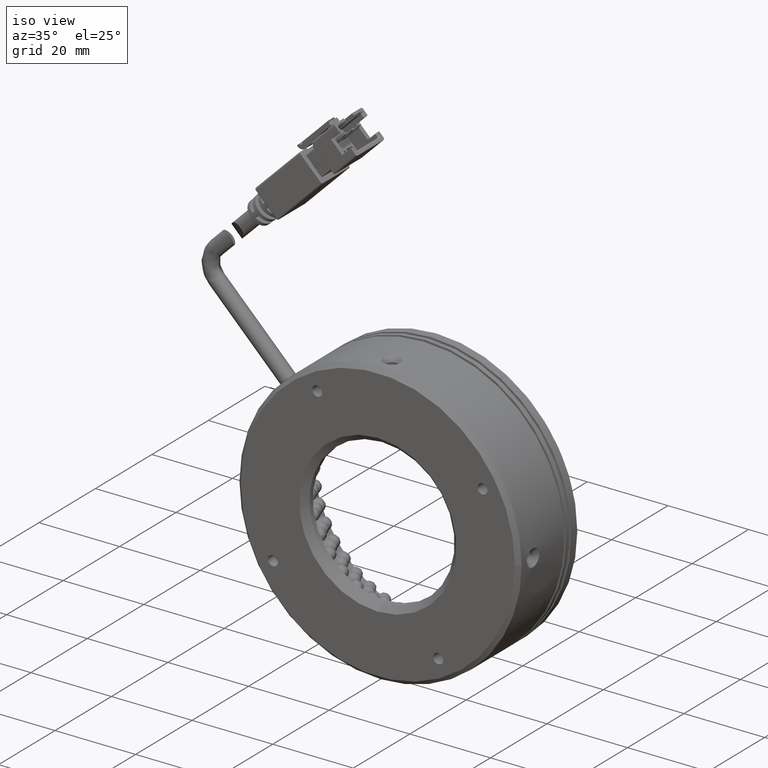
[diagram: clean part render]
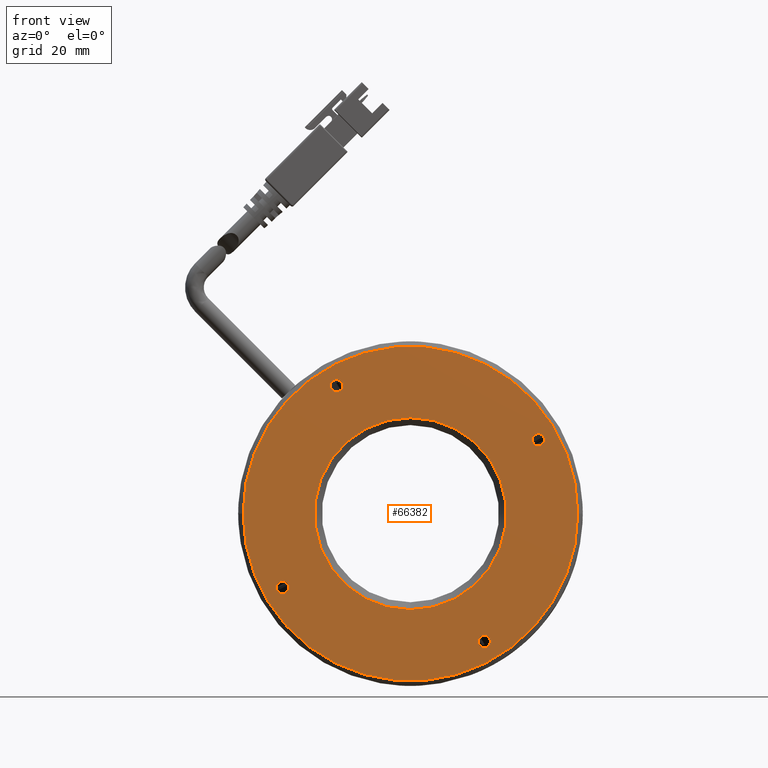
[diagram: tour spotlight — one face highlighted and labeled with its STEP entity id]
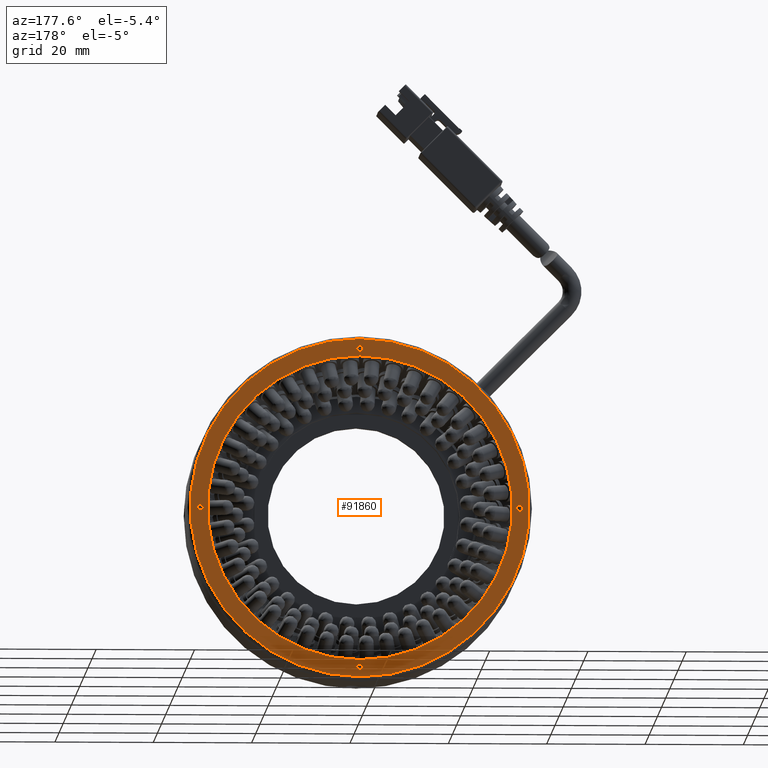
[diagram: tour spotlight — one face highlighted and labeled with its STEP entity id]
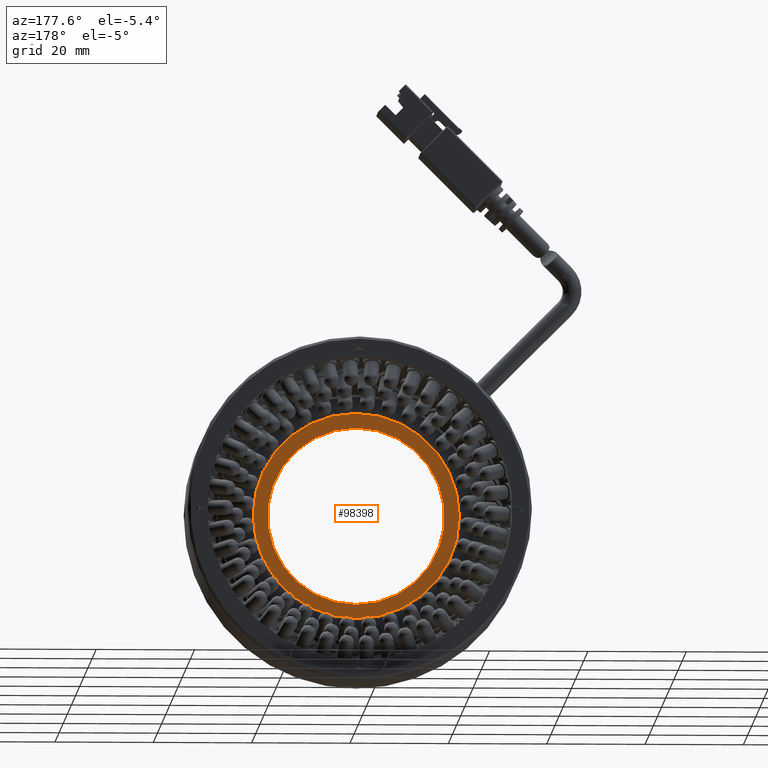
[diagram: tour spotlight — one face highlighted and labeled with its STEP entity id]
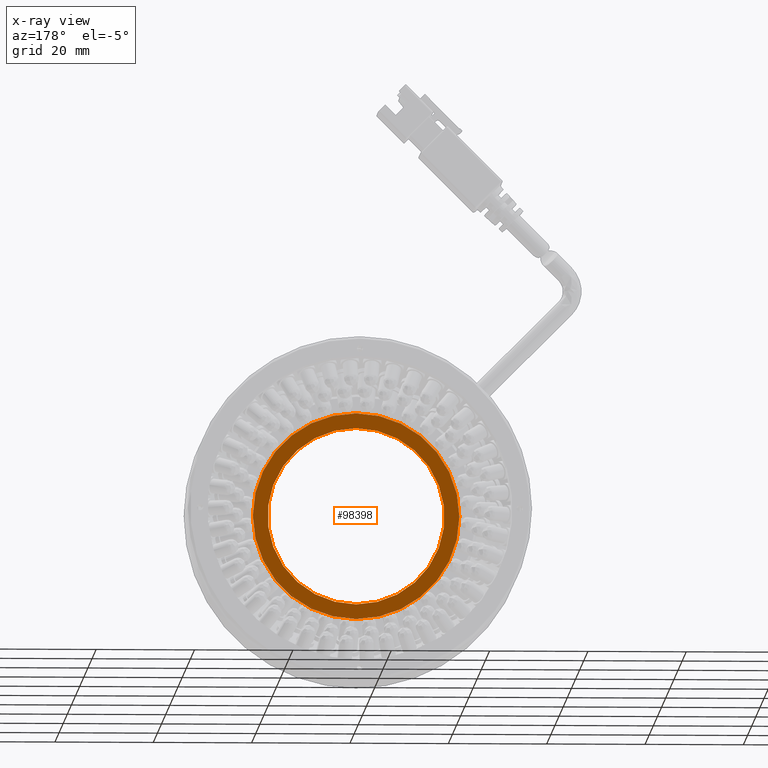
[diagram: x-ray of the same camera — body ghosted, this tour face saturated]
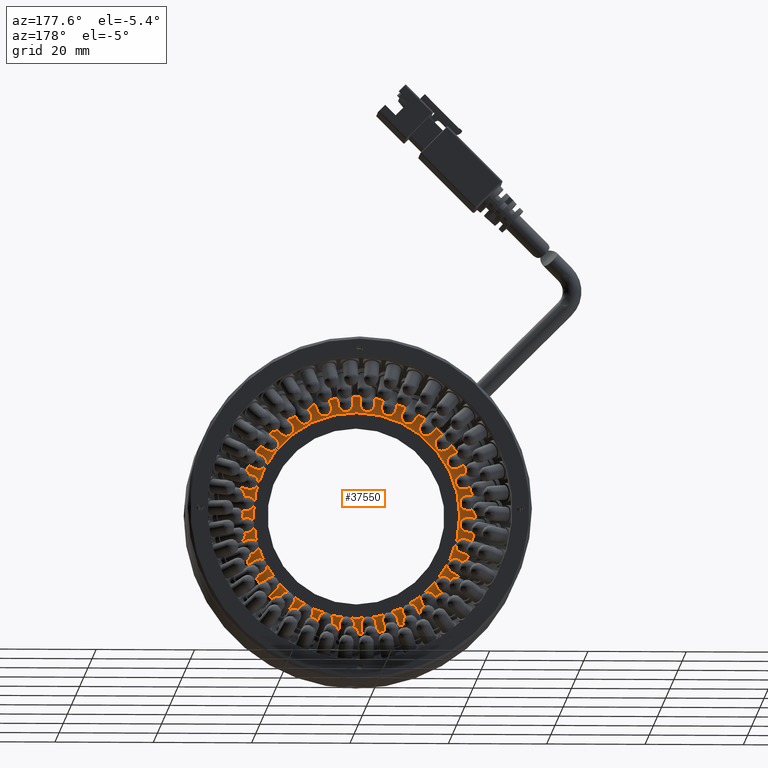
[diagram: tour spotlight — one face highlighted and labeled with its STEP entity id]
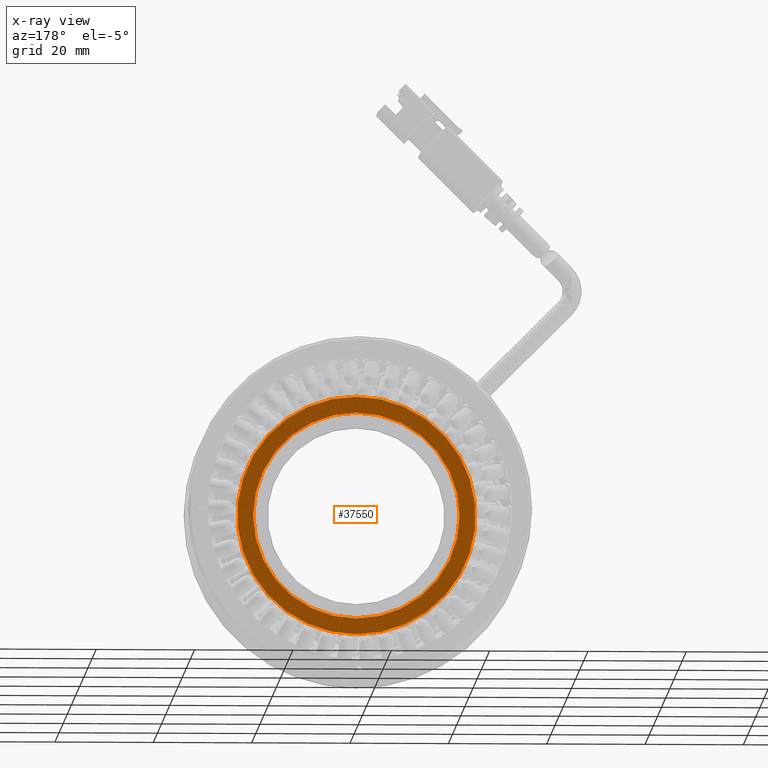
[diagram: x-ray of the same camera — body ghosted, this tour face saturated]
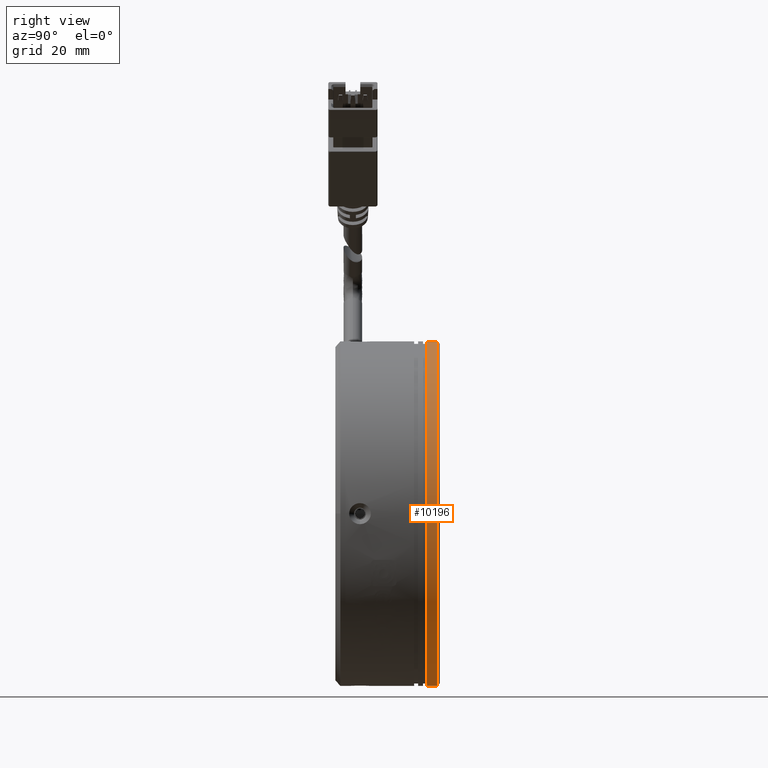
[diagram: tour spotlight — one face highlighted and labeled with its STEP entity id]
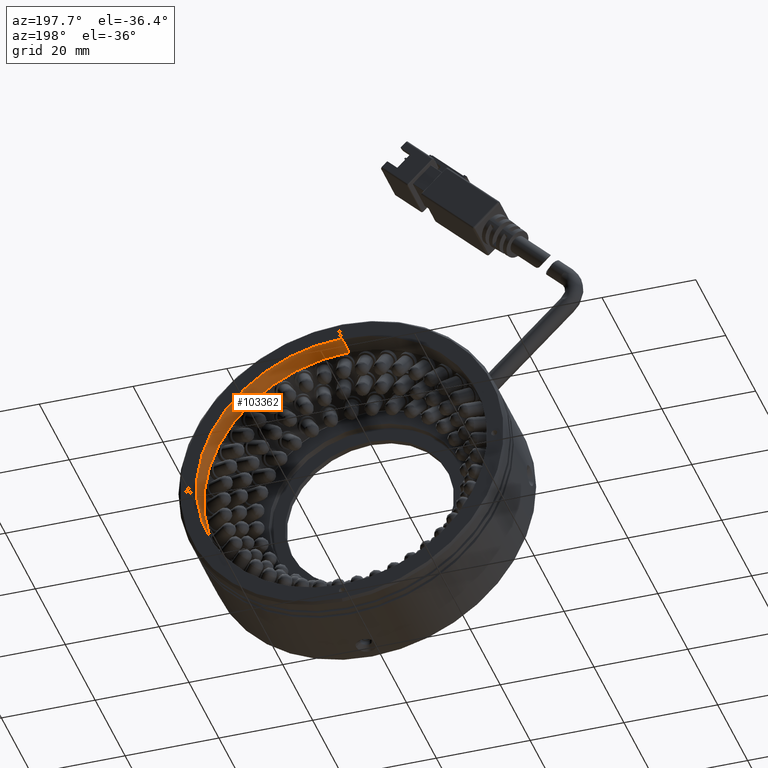
[diagram: tour spotlight — one face highlighted and labeled with its STEP entity id]
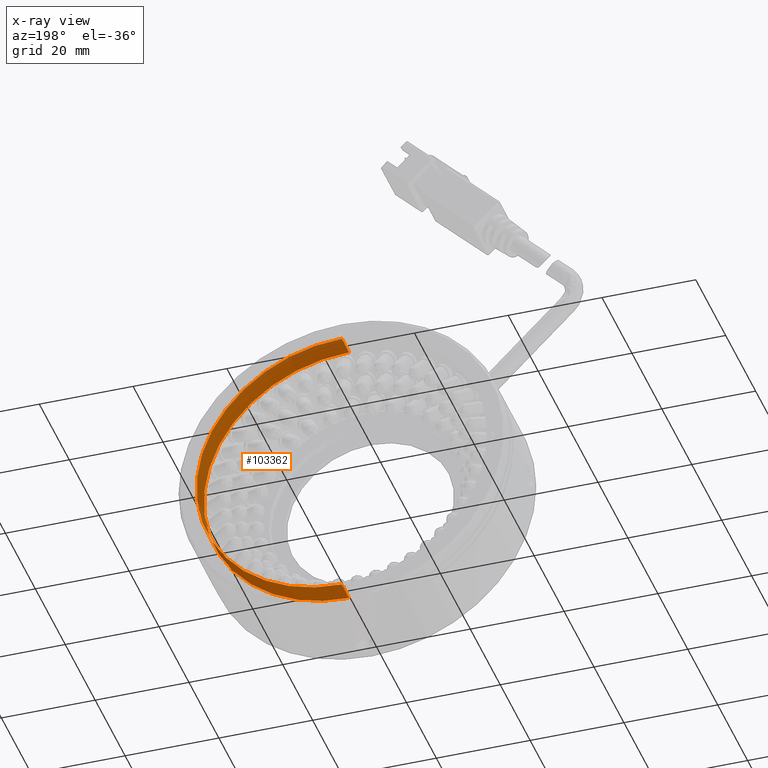
[diagram: x-ray of the same camera — body ghosted, this tour face saturated]
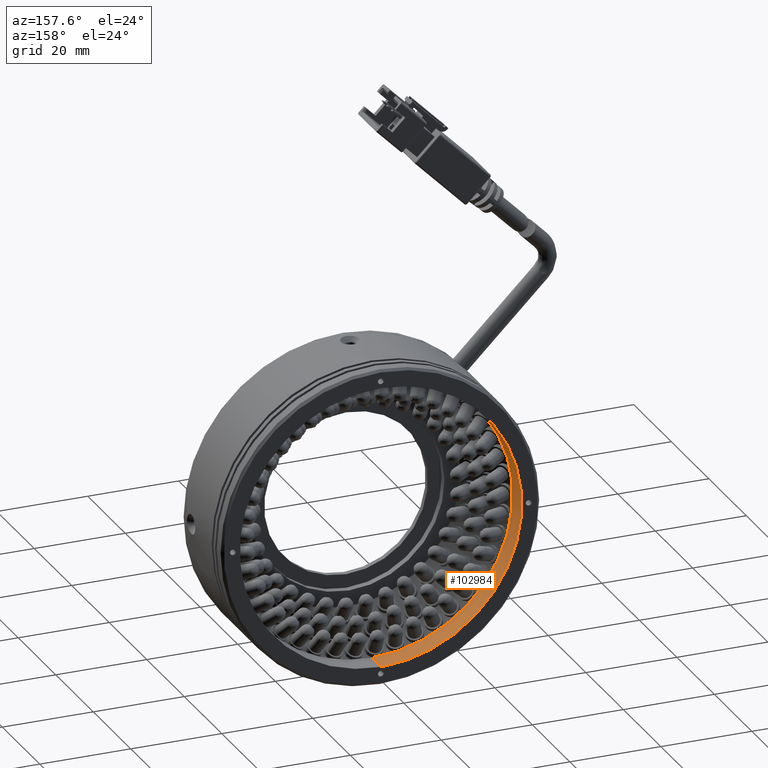
[diagram: tour spotlight — one face highlighted and labeled with its STEP entity id]
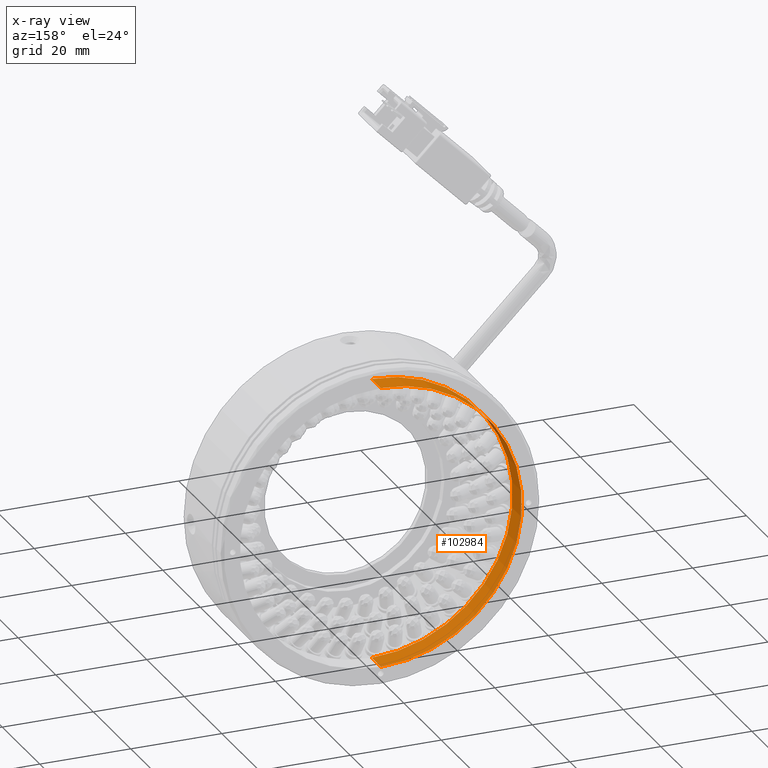
[diagram: x-ray of the same camera — body ghosted, this tour face saturated]
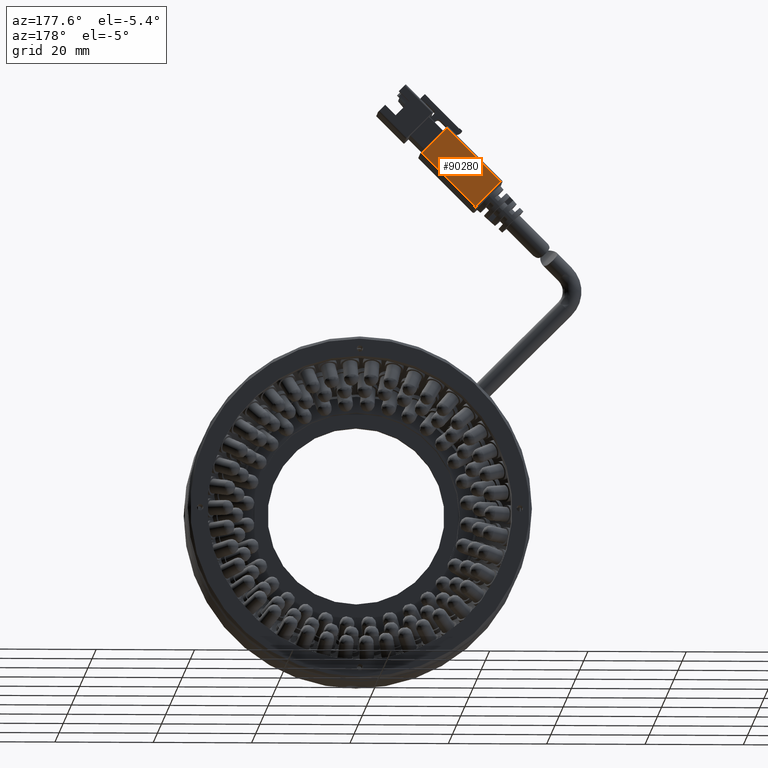
[diagram: tour spotlight — one face highlighted and labeled with its STEP entity id]
A machine part: a face-by-face anatomy tour. The part has 2275 B-rep faces; the first image is the clean iso view, then the 8 largest visible faces are spotlighted one at a time (largest first), each with its STEP entity span.

Face 1 — front view, entity #66382. In plain terms, the highlighted planar face has unit normal (0, 1, 0).
Definition (entity closure, byte-faithful):
#283 = CARTESIAN_POINT ( 'NONE',  ( -22.22376356038446600, -26.73693679055957900, -39.08318759848835800 ) ) ;
#1486 = DIRECTION ( 'NONE',  ( -0.0000000000000000000, -1.000000000000000000, -0.0000000000000000000 ) ) ;
#3578 = AXIS2_PLACEMENT_3D ( 'NONE', #31961, #88263, #40081 ) ;
#4066 = DIRECTION ( 'NONE',  ( 0.0000000000000000000, 1.000000000000000000, 0.0000000000000000000 ) ) ;
#4451 = AXIS2_PLACEMENT_3D ( 'NONE', #90619, #42412, #98644 ) ;
#6367 = ORIENTED_EDGE ( 'NONE', *, *, #12301, .F. ) ;
#8370 = DIRECTION ( 'NONE',  ( 0.0000000000000000000, 0.0000000000000000000, -1.000000000000000000 ) ) ;
#10443 = EDGE_CURVE ( 'NONE', #72847, #84745, #87884, .T. ) ;
#10648 = EDGE_CURVE ( 'NONE', #37887, #54056, #19805, .T. ) ;
#11037 = CIRCLE ( 'NONE', #43676, 1.249999999999994200 ) ;
#11477 = CARTESIAN_POINT ( 'NONE',  ( -11.24300144685170000, -26.73693679055957900, 1.897574515044971000 ) ) ;
#12301 = EDGE_CURVE ( 'NONE', #54056, #37887, #97014, .T. ) ;
#14035 = CARTESIAN_POINT ( 'NONE',  ( -37.22376356038467500, -26.73693679055958200, 6.397574515044687400 ) ) ;
#14776 = CARTESIAN_POINT ( 'NONE',  ( -52.22376356038507300, -26.73693679055957900, 12.87833662857758900 ) ) ;
#17142 = ORIENTED_EDGE ( 'NONE', *, *, #47731, .F. ) ;
#19601 = DIRECTION ( 'NONE',  ( 0.0000000000000000000, 0.0000000000000000000, -1.000000000000000000 ) ) ;
#19805 = CIRCLE ( 'NONE', #47359, 34.00000000000004300 ) ;
#20929 = AXIS2_PLACEMENT_3D ( 'NONE', #11477, #67796, #19601 ) ;
#21637 = DIRECTION ( 'NONE',  ( -0.0000000000000000000, -1.000000000000000000, -0.0000000000000000000 ) ) ;
#21804 = VERTEX_POINT ( 'NONE', #58706 ) ;
#22853 = ORIENTED_EDGE ( 'NONE', *, *, #10443, .F. ) ;
#22900 = ORIENTED_EDGE ( 'NONE', *, *, #55451, .F. ) ;
#22918 = DIRECTION ( 'NONE',  ( 0.0000000000000000000, 0.0000000000000000000, -1.000000000000000000 ) ) ;
#23020 = EDGE_LOOP ( 'NONE', ( #42322, #22853 ) ) ;
#25179 = EDGE_LOOP ( 'NONE', ( #55427, #64336 ) ) ;
#26032 = CARTESIAN_POINT ( 'NONE',  ( -11.24300144685170000, -26.73693679055957900, 1.897574515044971000 ) ) ;
#26082 = VERTEX_POINT ( 'NONE', #29254 ) ;
#27374 = EDGE_LOOP ( 'NONE', ( #22900, #98588 ) ) ;
#27650 = CIRCLE ( 'NONE', #3578, 1.249999999999994200 ) ;
#28078 = AXIS2_PLACEMENT_3D ( 'NONE', #14776, #71090, #22918 ) ;
#29198 = EDGE_LOOP ( 'NONE', ( #66798, #6367 ) ) ;
#29254 = CARTESIAN_POINT ( 'NONE',  ( -52.22376356038507300, -26.73693679055957900, 14.12833662857758400 ) ) ;
#29986 = FACE_BOUND ( 'NONE', #23020, .T. ) ;
#31936 = EDGE_CURVE ( 'NONE', #59867, #21804, #62318, .T. ) ;
#31961 = CARTESIAN_POINT ( 'NONE',  ( -22.22376356038446600, -26.73693679055957900, -39.08318759848835800 ) ) ;
#32512 = FACE_BOUND ( 'NONE', #48502, .T. ) ;
#32928 = VERTEX_POINT ( 'NONE', #56525 ) ;
#34142 = DIRECTION ( 'NONE',  ( 0.0000000000000000000, 0.0000000000000000000, -1.000000000000000000 ) ) ;
#37219 = CIRCLE ( 'NONE', #99041, 1.249999999999994200 ) ;
#37716 = CIRCLE ( 'NONE', #20929, 1.249999999999994200 ) ;
#37887 = VERTEX_POINT ( 'NONE', #70057 ) ;
#38551 = AXIS2_PLACEMENT_3D ( 'NONE', #96009, #95905, #95896 ) ;
#38780 = CIRCLE ( 'NONE', #4451, 1.249999999999994200 ) ;
#40081 = DIRECTION ( 'NONE',  ( 0.0000000000000000000, 0.0000000000000000000, -1.000000000000000000 ) ) ;
#41457 = DIRECTION ( 'NONE',  ( 0.0000000000000000000, -1.000000000000000000, 0.0000000000000000000 ) ) ;
#41645 = EDGE_CURVE ( 'NONE', #26082, #41743, #42728, .T. ) ;
#41743 = VERTEX_POINT ( 'NONE', #88712 ) ;
#42322 = ORIENTED_EDGE ( 'NONE', *, *, #55121, .F. ) ;
#42412 = DIRECTION ( 'NONE',  ( -0.0000000000000000000, -1.000000000000000000, -0.0000000000000000000 ) ) ;
#42728 = CIRCLE ( 'NONE', #28078, 1.249999999999994200 ) ;
#43572 = ORIENTED_EDGE ( 'NONE', *, *, #71365, .F. ) ;
#43676 = AXIS2_PLACEMENT_3D ( 'NONE', #283, #56618, #8370 ) ;
#43738 = AXIS2_PLACEMENT_3D ( 'NONE', #89664, #41457, #97677 ) ;
#45541 = VERTEX_POINT ( 'NONE', #92924 ) ;
#47359 = AXIS2_PLACEMENT_3D ( 'NONE', #87630, #87513, #87502 ) ;
#47731 = EDGE_CURVE ( 'NONE', #32928, #57937, #63064, .T. ) ;
#48502 = EDGE_LOOP ( 'NONE', ( #17142, #74978 ) ) ;
#49284 = EDGE_CURVE ( 'NONE', #57937, #32928, #38780, .T. ) ;
#49713 = CARTESIAN_POINT ( 'NONE',  ( -63.20452567391775000, -26.73693679055957900, -28.10242548495545400 ) ) ;
#51474 = FACE_OUTER_BOUND ( 'NONE', #29198, .T. ) ;
#52297 = CARTESIAN_POINT ( 'NONE',  ( -55.22376356038467500, -26.73693679055958200, -13.10242548495533300 ) ) ;
#53743 = AXIS2_PLACEMENT_3D ( 'NONE', #52297, #4066, #60341 ) ;
#54056 = VERTEX_POINT ( 'NONE', #94689 ) ;
#54552 = AXIS2_PLACEMENT_3D ( 'NONE', #26032, #82328, #34142 ) ;
#55121 = EDGE_CURVE ( 'NONE', #84745, #72847, #86517, .T. ) ;
#55427 = ORIENTED_EDGE ( 'NONE', *, *, #31936, .F. ) ;
#55451 = EDGE_CURVE ( 'NONE', #41743, #26082, #37219, .T. ) ;
#56525 = CARTESIAN_POINT ( 'NONE',  ( -63.20452567391775000, -26.73693679055957900, -29.35242548495545000 ) ) ;
#56618 = DIRECTION ( 'NONE',  ( -0.0000000000000000000, -1.000000000000000000, -0.0000000000000000000 ) ) ;
#57067 = AXIS2_PLACEMENT_3D ( 'NONE', #62048, #61961, #61703 ) ;
#57783 = DIRECTION ( 'NONE',  ( 0.0000000000000000000, 0.0000000000000000000, -1.000000000000000000 ) ) ;
#57937 = VERTEX_POINT ( 'NONE', #71453 ) ;
#58706 = CARTESIAN_POINT ( 'NONE',  ( -11.24300144685170000, -26.73693679055957900, 3.147574515044965400 ) ) ;
#58723 = EDGE_LOOP ( 'NONE', ( #90579, #43572 ) ) ;
#59867 = VERTEX_POINT ( 'NONE', #93798 ) ;
#60341 = DIRECTION ( 'NONE',  ( 0.0000000000000000000, -0.0000000000000000000, 1.000000000000000000 ) ) ;
#61184 = EDGE_CURVE ( 'NONE', #91519, #45541, #27650, .T. ) ;
#61390 = AXIS2_PLACEMENT_3D ( 'NONE', #49713, #1486, #57783 ) ;
#61703 = DIRECTION ( 'NONE',  ( -1.000000000000000000, 0.0000000000000000000, 0.0000000000000000000 ) ) ;
#61961 = DIRECTION ( 'NONE',  ( 2.478176394252581700E-017, 1.000000000000000000, 0.0000000000000000000 ) ) ;
#62048 = CARTESIAN_POINT ( 'NONE',  ( -37.22376356038467500, -26.73693679055958200, -13.10242548495533300 ) ) ;
#62318 = CIRCLE ( 'NONE', #54552, 1.249999999999994200 ) ;
#63064 = CIRCLE ( 'NONE', #61390, 1.249999999999994200 ) ;
#64336 = ORIENTED_EDGE ( 'NONE', *, *, #100312, .F. ) ;
#66382 = ADVANCED_FACE ( 'NONE', ( #32512, #94183, #75312, #72764, #51474, #29986 ), #91653, .F. ) ;
#66798 = ORIENTED_EDGE ( 'NONE', *, *, #10648, .F. ) ;
#67796 = DIRECTION ( 'NONE',  ( -0.0000000000000000000, -1.000000000000000000, -0.0000000000000000000 ) ) ;
#69190 = CARTESIAN_POINT ( 'NONE',  ( -22.22376356038446600, -26.73693679055957900, -40.33318759848835800 ) ) ;
#69805 = CARTESIAN_POINT ( 'NONE',  ( -52.22376356038507300, -26.73693679055957900, 12.87833662857758900 ) ) ;
#70057 = CARTESIAN_POINT ( 'NONE',  ( -71.22376356038472500, -26.73693679055958200, -13.10242548495533300 ) ) ;
#71090 = DIRECTION ( 'NONE',  ( -0.0000000000000000000, -1.000000000000000000, -0.0000000000000000000 ) ) ;
#71105 = CARTESIAN_POINT ( 'NONE',  ( -37.22376356038467500, -26.73693679055958200, -32.60242548495536100 ) ) ;
#71365 = EDGE_CURVE ( 'NONE', #45541, #91519, #11037, .T. ) ;
#71453 = CARTESIAN_POINT ( 'NONE',  ( -63.20452567391775000, -26.73693679055957900, -26.85242548495546100 ) ) ;
#72764 = FACE_BOUND ( 'NONE', #27374, .T. ) ;
#72847 = VERTEX_POINT ( 'NONE', #14035 ) ;
#74978 = ORIENTED_EDGE ( 'NONE', *, *, #49284, .F. ) ;
#75312 = FACE_BOUND ( 'NONE', #25179, .T. ) ;
#77918 = DIRECTION ( 'NONE',  ( 0.0000000000000000000, 0.0000000000000000000, -1.000000000000000000 ) ) ;
#82328 = DIRECTION ( 'NONE',  ( -0.0000000000000000000, -1.000000000000000000, -0.0000000000000000000 ) ) ;
#84745 = VERTEX_POINT ( 'NONE', #71105 ) ;
#86517 = CIRCLE ( 'NONE', #43738, 19.50000000000002500 ) ;
#87502 = DIRECTION ( 'NONE',  ( -1.000000000000000000, 0.0000000000000000000, 0.0000000000000000000 ) ) ;
#87513 = DIRECTION ( 'NONE',  ( 2.478176394252581700E-017, 1.000000000000000000, 0.0000000000000000000 ) ) ;
#87630 = CARTESIAN_POINT ( 'NONE',  ( -37.22376356038467500, -26.73693679055958200, -13.10242548495533300 ) ) ;
#87884 = CIRCLE ( 'NONE', #38551, 19.50000000000002500 ) ;
#88263 = DIRECTION ( 'NONE',  ( -0.0000000000000000000, -1.000000000000000000, -0.0000000000000000000 ) ) ;
#88712 = CARTESIAN_POINT ( 'NONE',  ( -52.22376356038507300, -26.73693679055957900, 11.62833662857759600 ) ) ;
#89664 = CARTESIAN_POINT ( 'NONE',  ( -37.22376356038467500, -26.73693679055958200, -13.10242548495533300 ) ) ;
#90579 = ORIENTED_EDGE ( 'NONE', *, *, #61184, .F. ) ;
#90619 = CARTESIAN_POINT ( 'NONE',  ( -63.20452567391775000, -26.73693679055957900, -28.10242548495545400 ) ) ;
#91519 = VERTEX_POINT ( 'NONE', #69190 ) ;
#91653 = PLANE ( 'NONE',  #53743 ) ;
#92924 = CARTESIAN_POINT ( 'NONE',  ( -22.22376356038446600, -26.73693679055957900, -37.83318759848836500 ) ) ;
#93798 = CARTESIAN_POINT ( 'NONE',  ( -11.24300144685170000, -26.73693679055957900, 0.6475745150449768700 ) ) ;
#94183 = FACE_BOUND ( 'NONE', #58723, .T. ) ;
#94689 = CARTESIAN_POINT ( 'NONE',  ( -3.223763560384632000, -26.73693679055958200, -13.10242548495532900 ) ) ;
#95896 = DIRECTION ( 'NONE',  ( 0.0000000000000000000, 0.0000000000000000000, -1.000000000000000000 ) ) ;
#95905 = DIRECTION ( 'NONE',  ( 0.0000000000000000000, -1.000000000000000000, 0.0000000000000000000 ) ) ;
#96009 = CARTESIAN_POINT ( 'NONE',  ( -37.22376356038467500, -26.73693679055958200, -13.10242548495533300 ) ) ;
#97014 = CIRCLE ( 'NONE', #57067, 34.00000000000004300 ) ;
#97677 = DIRECTION ( 'NONE',  ( 0.0000000000000000000, 0.0000000000000000000, -1.000000000000000000 ) ) ;
#98588 = ORIENTED_EDGE ( 'NONE', *, *, #41645, .F. ) ;
#98644 = DIRECTION ( 'NONE',  ( 0.0000000000000000000, 0.0000000000000000000, -1.000000000000000000 ) ) ;
#99041 = AXIS2_PLACEMENT_3D ( 'NONE', #69805, #21637, #77918 ) ;
#100312 = EDGE_CURVE ( 'NONE', #21804, #59867, #37716, .T. ) ;

Face 2 — auxiliary view, entity #91860. In plain terms, the highlighted planar face has unit normal (0, -1, 0).
Definition (entity closure, byte-faithful):
#276 = AXIS2_PLACEMENT_3D ( 'NONE', #71415, #23227, #79504 ) ;
#476 = AXIS2_PLACEMENT_3D ( 'NONE', #41889, #98101, #50014 ) ;
#551 = CIRCLE ( 'NONE', #8422, 34.50000000000000700 ) ;
#869 = CARTESIAN_POINT ( 'NONE',  ( -37.22376356038466100, -5.536936790559607000, -13.10242548495532100 ) ) ;
#1652 = DIRECTION ( 'NONE',  ( 0.0000000000000000000, 0.0000000000000000000, 1.000000000000000000 ) ) ;
#1785 = AXIS2_PLACEMENT_3D ( 'NONE', #25162, #81477, #33265 ) ;
#2303 = EDGE_CURVE ( 'NONE', #17998, #96477, #551, .T. ) ;
#2349 = PLANE ( 'NONE',  #48762 ) ;
#3059 = DIRECTION ( 'NONE',  ( 0.0000000000000000000, -0.0000000000000000000, -1.000000000000000000 ) ) ;
#5565 = AXIS2_PLACEMENT_3D ( 'NONE', #75102, #74966, #74874 ) ;
#8422 = AXIS2_PLACEMENT_3D ( 'NONE', #63841, #21384, #37704 ) ;
#8931 = DIRECTION ( 'NONE',  ( 0.0000000000000000000, 0.0000000000000000000, -1.000000000000000000 ) ) ;
#10317 = CARTESIAN_POINT ( 'NONE',  ( -4.723763560384661300, -5.536936790559605200, -13.10242548495520700 ) ) ;
#10785 = EDGE_CURVE ( 'NONE', #80567, #76025, #97697, .T. ) ;
#12401 = EDGE_LOOP ( 'NONE', ( #12759, #85683 ) ) ;
#12759 = ORIENTED_EDGE ( 'NONE', *, *, #91794, .T. ) ;
#13012 = CARTESIAN_POINT ( 'NONE',  ( -37.22376356038466100, -5.536936790559605200, 18.77257451504468100 ) ) ;
#13295 = ORIENTED_EDGE ( 'NONE', *, *, #74062, .F. ) ;
#13380 = CARTESIAN_POINT ( 'NONE',  ( -69.72376356038466800, -5.536936790559605200, -13.10242548495566000 ) ) ;
#15768 = CARTESIAN_POINT ( 'NONE',  ( -4.723763560384661300, -5.536936790559605200, -12.47742548495520700 ) ) ;
#17138 = FACE_BOUND ( 'NONE', #12401, .T. ) ;
#17140 = CIRCLE ( 'NONE', #79076, 34.50000000000000700 ) ;
#17998 = VERTEX_POINT ( 'NONE', #57220 ) ;
#18405 = DIRECTION ( 'NONE',  ( 0.0000000000000000000, 0.0000000000000000000, 1.000000000000000000 ) ) ;
#19409 = ORIENTED_EDGE ( 'NONE', *, *, #2303, .F. ) ;
#20389 = ORIENTED_EDGE ( 'NONE', *, *, #94002, .T. ) ;
#20664 = EDGE_CURVE ( 'NONE', #80908, #73449, #20725, .T. ) ;
#20725 = CIRCLE ( 'NONE', #48698, 0.6250000000000005600 ) ;
#21384 = DIRECTION ( 'NONE',  ( 0.0000000000000000000, -1.000000000000000000, 0.0000000000000000000 ) ) ;
#21522 = DIRECTION ( 'NONE',  ( 0.0000000000000000000, 0.0000000000000000000, 1.000000000000000000 ) ) ;
#23227 = DIRECTION ( 'NONE',  ( 0.0000000000000000000, -1.000000000000000000, 0.0000000000000000000 ) ) ;
#23719 = AXIS2_PLACEMENT_3D ( 'NONE', #97971, #49880, #1652 ) ;
#25162 = CARTESIAN_POINT ( 'NONE',  ( -37.22376356038466100, -5.536936790559604300, -13.10242548495532100 ) ) ;
#25838 = EDGE_CURVE ( 'NONE', #76025, #80567, #40862, .T. ) ;
#26192 = EDGE_CURVE ( 'NONE', #33365, #59863, #79657, .T. ) ;
#26930 = EDGE_CURVE ( 'NONE', #73449, #80908, #52923, .T. ) ;
#27281 = DIRECTION ( 'NONE',  ( 0.0000000000000000000, -1.000000000000000000, 0.0000000000000000000 ) ) ;
#31228 = DIRECTION ( 'NONE',  ( -0.0000000000000000000, -1.000000000000000000, -0.0000000000000000000 ) ) ;
#32496 = CARTESIAN_POINT ( 'NONE',  ( -37.22376356038466100, -5.536936790559604300, -44.10242548495531900 ) ) ;
#33265 = DIRECTION ( 'NONE',  ( 0.0000000000000000000, 0.0000000000000000000, -1.000000000000000000 ) ) ;
#33365 = VERTEX_POINT ( 'NONE', #13012 ) ;
#36796 = CARTESIAN_POINT ( 'NONE',  ( -37.22376356038466100, -5.536936790559605200, -45.60242548495531900 ) ) ;
#37704 = DIRECTION ( 'NONE',  ( 0.0000000000000000000, 0.0000000000000000000, -1.000000000000000000 ) ) ;
#38290 = CARTESIAN_POINT ( 'NONE',  ( -37.22376356038466100, -5.536936790559605200, -46.22742548495531900 ) ) ;
#38555 = CIRCLE ( 'NONE', #98907, 0.6250000000000005600 ) ;
#38585 = FACE_BOUND ( 'NONE', #85080, .T. ) ;
#40188 = ORIENTED_EDGE ( 'NONE', *, *, #59004, .T. ) ;
#40235 = CIRCLE ( 'NONE', #1785, 31.00000000000000000 ) ;
#40862 = CIRCLE ( 'NONE', #70954, 0.6250000000000005600 ) ;
#41515 = CARTESIAN_POINT ( 'NONE',  ( -37.22376356038466100, -5.536936790559607000, -47.60242548495533300 ) ) ;
#41889 = CARTESIAN_POINT ( 'NONE',  ( -69.72376356038466800, -5.536936790559605200, -13.10242548495566000 ) ) ;
#44118 = VERTEX_POINT ( 'NONE', #65855 ) ;
#44893 = DIRECTION ( 'NONE',  ( 0.0000000000000000000, 0.0000000000000000000, 1.000000000000000000 ) ) ;
#45109 = CIRCLE ( 'NONE', #75176, 31.00000000000000000 ) ;
#45278 = CARTESIAN_POINT ( 'NONE',  ( -37.22376356038466100, -5.536936790559605200, 20.02257451504468100 ) ) ;
#47336 = CIRCLE ( 'NONE', #476, 0.6250000000000005600 ) ;
#48698 = AXIS2_PLACEMENT_3D ( 'NONE', #36796, #93070, #44893 ) ;
#48762 = AXIS2_PLACEMENT_3D ( 'NONE', #99373, #51276, #3059 ) ;
#49787 = ORIENTED_EDGE ( 'NONE', *, *, #25838, .T. ) ;
#49880 = DIRECTION ( 'NONE',  ( 0.0000000000000000000, -1.000000000000000000, 0.0000000000000000000 ) ) ;
#50014 = DIRECTION ( 'NONE',  ( 0.0000000000000000000, 0.0000000000000000000, 1.000000000000000000 ) ) ;
#51276 = DIRECTION ( 'NONE',  ( 0.0000000000000000000, -1.000000000000000000, 0.0000000000000000000 ) ) ;
#52923 = CIRCLE ( 'NONE', #76530, 0.6250000000000005600 ) ;
#54523 = VERTEX_POINT ( 'NONE', #73214 ) ;
#57183 = DIRECTION ( 'NONE',  ( 0.0000000000000000000, -1.000000000000000000, 0.0000000000000000000 ) ) ;
#57220 = CARTESIAN_POINT ( 'NONE',  ( -37.22376356038465400, -5.536936790559607000, 21.39757451504468800 ) ) ;
#59004 = EDGE_CURVE ( 'NONE', #54523, #76206, #38555, .T. ) ;
#59863 = VERTEX_POINT ( 'NONE', #45278 ) ;
#59973 = FACE_OUTER_BOUND ( 'NONE', #69731, .T. ) ;
#63841 = CARTESIAN_POINT ( 'NONE',  ( -37.22376356038466100, -5.536936790559607000, -13.10242548495532100 ) ) ;
#65855 = CARTESIAN_POINT ( 'NONE',  ( -37.22376356038465400, -5.536936790559604300, 17.89757451504468100 ) ) ;
#65889 = ORIENTED_EDGE ( 'NONE', *, *, #20664, .T. ) ;
#66149 = EDGE_CURVE ( 'NONE', #44118, #76533, #40235, .T. ) ;
#66323 = CIRCLE ( 'NONE', #23719, 0.6250000000000005600 ) ;
#66606 = DIRECTION ( 'NONE',  ( 0.0000000000000000000, -1.000000000000000000, 0.0000000000000000000 ) ) ;
#68048 = EDGE_LOOP ( 'NONE', ( #40188, #20389 ) ) ;
#69236 = ORIENTED_EDGE ( 'NONE', *, *, #10785, .T. ) ;
#69693 = DIRECTION ( 'NONE',  ( 0.0000000000000000000, -1.000000000000000000, 0.0000000000000000000 ) ) ;
#69731 = EDGE_LOOP ( 'NONE', ( #13295, #19409 ) ) ;
#70954 = AXIS2_PLACEMENT_3D ( 'NONE', #10317, #66606, #18405 ) ;
#71415 = CARTESIAN_POINT ( 'NONE',  ( -37.22376356038466100, -5.536936790559605200, 19.39757451504468100 ) ) ;
#72772 = ORIENTED_EDGE ( 'NONE', *, *, #66149, .T. ) ;
#73214 = CARTESIAN_POINT ( 'NONE',  ( -69.72376356038466800, -5.536936790559605200, -12.47742548495566000 ) ) ;
#73449 = VERTEX_POINT ( 'NONE', #38290 ) ;
#73713 = EDGE_LOOP ( 'NONE', ( #65889, #88037 ) ) ;
#74062 = EDGE_CURVE ( 'NONE', #96477, #17998, #17140, .T. ) ;
#74466 = EDGE_LOOP ( 'NONE', ( #69236, #49787 ) ) ;
#74874 = DIRECTION ( 'NONE',  ( 0.0000000000000000000, 0.0000000000000000000, 1.000000000000000000 ) ) ;
#74966 = DIRECTION ( 'NONE',  ( 0.0000000000000000000, -1.000000000000000000, 0.0000000000000000000 ) ) ;
#75102 = CARTESIAN_POINT ( 'NONE',  ( -4.723763560384661300, -5.536936790559605200, -13.10242548495520700 ) ) ;
#75176 = AXIS2_PLACEMENT_3D ( 'NONE', #79388, #31228, #87531 ) ;
#75484 = CARTESIAN_POINT ( 'NONE',  ( -37.22376356038466100, -5.536936790559605200, -45.60242548495531900 ) ) ;
#76025 = VERTEX_POINT ( 'NONE', #98005 ) ;
#76206 = VERTEX_POINT ( 'NONE', #84656 ) ;
#76530 = AXIS2_PLACEMENT_3D ( 'NONE', #75484, #27281, #83598 ) ;
#76533 = VERTEX_POINT ( 'NONE', #32496 ) ;
#78148 = ORIENTED_EDGE ( 'NONE', *, *, #102495, .T. ) ;
#79076 = AXIS2_PLACEMENT_3D ( 'NONE', #869, #57183, #8931 ) ;
#79388 = CARTESIAN_POINT ( 'NONE',  ( -37.22376356038466100, -5.536936790559604300, -13.10242548495532100 ) ) ;
#79504 = DIRECTION ( 'NONE',  ( 0.0000000000000000000, 0.0000000000000000000, 1.000000000000000000 ) ) ;
#79657 = CIRCLE ( 'NONE', #276, 0.6250000000000005600 ) ;
#80567 = VERTEX_POINT ( 'NONE', #15768 ) ;
#80908 = VERTEX_POINT ( 'NONE', #93155 ) ;
#81354 = FACE_BOUND ( 'NONE', #73713, .T. ) ;
#81477 = DIRECTION ( 'NONE',  ( -0.0000000000000000000, -1.000000000000000000, -0.0000000000000000000 ) ) ;
#83598 = DIRECTION ( 'NONE',  ( 0.0000000000000000000, 0.0000000000000000000, 1.000000000000000000 ) ) ;
#84656 = CARTESIAN_POINT ( 'NONE',  ( -69.72376356038466800, -5.536936790559605200, -13.72742548495566000 ) ) ;
#85080 = EDGE_LOOP ( 'NONE', ( #78148, #72772 ) ) ;
#85683 = ORIENTED_EDGE ( 'NONE', *, *, #26192, .T. ) ;
#87531 = DIRECTION ( 'NONE',  ( 0.0000000000000000000, 0.0000000000000000000, -1.000000000000000000 ) ) ;
#88037 = ORIENTED_EDGE ( 'NONE', *, *, #26930, .T. ) ;
#91794 = EDGE_CURVE ( 'NONE', #59863, #33365, #66323, .T. ) ;
#91860 = ADVANCED_FACE ( 'NONE', ( #38585, #59973, #81354, #102728, #17138, #100200 ), #2349, .F. ) ;
#93070 = DIRECTION ( 'NONE',  ( 0.0000000000000000000, -1.000000000000000000, 0.0000000000000000000 ) ) ;
#93155 = CARTESIAN_POINT ( 'NONE',  ( -37.22376356038466100, -5.536936790559605200, -44.97742548495531900 ) ) ;
#94002 = EDGE_CURVE ( 'NONE', #76206, #54523, #47336, .T. ) ;
#96477 = VERTEX_POINT ( 'NONE', #41515 ) ;
#97697 = CIRCLE ( 'NONE', #5565, 0.6250000000000005600 ) ;
#97971 = CARTESIAN_POINT ( 'NONE',  ( -37.22376356038466100, -5.536936790559605200, 19.39757451504468100 ) ) ;
#98005 = CARTESIAN_POINT ( 'NONE',  ( -4.723763560384661300, -5.536936790559605200, -13.72742548495520700 ) ) ;
#98101 = DIRECTION ( 'NONE',  ( 0.0000000000000000000, -1.000000000000000000, 0.0000000000000000000 ) ) ;
#98907 = AXIS2_PLACEMENT_3D ( 'NONE', #13380, #69693, #21522 ) ;
#99373 = CARTESIAN_POINT ( 'NONE',  ( -68.22376356038466800, -5.536936790559605200, -13.10242548495532100 ) ) ;
#100200 = FACE_BOUND ( 'NONE', #68048, .T. ) ;
#102495 = EDGE_CURVE ( 'NONE', #76533, #44118, #45109, .T. ) ;
#102728 = FACE_BOUND ( 'NONE', #74466, .T. ) ;

Face 3 — auxiliary view, entity #98398. An x-ray twin of the same camera follows (body ghosted, this face saturated) — the face is partly hidden behind the body. In plain terms, the highlighted planar face has unit normal (0, -1, 0).
Definition (entity closure, byte-faithful):
#2513 = AXIS2_PLACEMENT_3D ( 'NONE', #62475, #14187, #70508 ) ;
#6258 = AXIS2_PLACEMENT_3D ( 'NONE', #6551, #62839, #14519 ) ;
#6551 = CARTESIAN_POINT ( 'NONE',  ( -37.22376356038467500, -24.03693679055957900, -13.10242548495533300 ) ) ;
#7197 = VERTEX_POINT ( 'NONE', #38152 ) ;
#7938 = AXIS2_PLACEMENT_3D ( 'NONE', #80456, #32270, #88567 ) ;
#14187 = DIRECTION ( 'NONE',  ( 0.0000000000000000000, -1.000000000000000000, 0.0000000000000000000 ) ) ;
#14263 = ORIENTED_EDGE ( 'NONE', *, *, #75932, .T. ) ;
#14519 = DIRECTION ( 'NONE',  ( 0.0000000000000000000, 0.0000000000000000000, -1.000000000000000000 ) ) ;
#16215 = DIRECTION ( 'NONE',  ( -0.0000000000000000000, -1.000000000000000000, -0.0000000000000000000 ) ) ;
#18328 = AXIS2_PLACEMENT_3D ( 'NONE', #89606, #41404, #97612 ) ;
#21968 = PLANE ( 'NONE',  #2513 ) ;
#27226 = FACE_BOUND ( 'NONE', #64802, .T. ) ;
#30630 = EDGE_CURVE ( 'NONE', #88308, #7197, #95672, .T. ) ;
#32270 = DIRECTION ( 'NONE',  ( -0.0000000000000000000, -1.000000000000000000, -0.0000000000000000000 ) ) ;
#36761 = AXIS2_PLACEMENT_3D ( 'NONE', #64493, #16215, #72504 ) ;
#37151 = ORIENTED_EDGE ( 'NONE', *, *, #91734, .F. ) ;
#37960 = CARTESIAN_POINT ( 'NONE',  ( -37.22376356038467500, -24.03693679055957900, 7.897574515044664300 ) ) ;
#38152 = CARTESIAN_POINT ( 'NONE',  ( -37.22376356038467500, -24.03693679055957900, -31.10242548495533700 ) ) ;
#39287 = EDGE_CURVE ( 'NONE', #75704, #53789, #57232, .T. ) ;
#41404 = DIRECTION ( 'NONE',  ( -0.0000000000000000000, -1.000000000000000000, -0.0000000000000000000 ) ) ;
#43944 = EDGE_LOOP ( 'NONE', ( #37151, #45006 ) ) ;
#45006 = ORIENTED_EDGE ( 'NONE', *, *, #39287, .F. ) ;
#53583 = CIRCLE ( 'NONE', #7938, 18.00000000000000400 ) ;
#53789 = VERTEX_POINT ( 'NONE', #82098 ) ;
#57232 = CIRCLE ( 'NONE', #6258, 20.99999999999999600 ) ;
#62475 = CARTESIAN_POINT ( 'NONE',  ( -58.22376356038467500, -24.03693679055957900, -13.10242548495533300 ) ) ;
#62839 = DIRECTION ( 'NONE',  ( -0.0000000000000000000, -1.000000000000000000, -0.0000000000000000000 ) ) ;
#64493 = CARTESIAN_POINT ( 'NONE',  ( -37.22376356038467500, -24.03693679055957900, -13.10242548495533300 ) ) ;
#64802 = EDGE_LOOP ( 'NONE', ( #14263, #76385 ) ) ;
#68796 = CIRCLE ( 'NONE', #18328, 20.99999999999999600 ) ;
#70508 = DIRECTION ( 'NONE',  ( 0.0000000000000000000, -0.0000000000000000000, -1.000000000000000000 ) ) ;
#72504 = DIRECTION ( 'NONE',  ( 0.0000000000000000000, 0.0000000000000000000, -1.000000000000000000 ) ) ;
#75704 = VERTEX_POINT ( 'NONE', #37960 ) ;
#75932 = EDGE_CURVE ( 'NONE', #7197, #88308, #53583, .T. ) ;
#76385 = ORIENTED_EDGE ( 'NONE', *, *, #30630, .T. ) ;
#80456 = CARTESIAN_POINT ( 'NONE',  ( -37.22376356038467500, -24.03693679055957900, -13.10242548495533300 ) ) ;
#82098 = CARTESIAN_POINT ( 'NONE',  ( -37.22376356038467500, -24.03693679055957900, -34.10242548495533300 ) ) ;
#88308 = VERTEX_POINT ( 'NONE', #102585 ) ;
#88567 = DIRECTION ( 'NONE',  ( 0.0000000000000000000, 0.0000000000000000000, -1.000000000000000000 ) ) ;
#88948 = FACE_OUTER_BOUND ( 'NONE', #43944, .T. ) ;
#89606 = CARTESIAN_POINT ( 'NONE',  ( -37.22376356038467500, -24.03693679055957900, -13.10242548495533300 ) ) ;
#91734 = EDGE_CURVE ( 'NONE', #53789, #75704, #68796, .T. ) ;
#95672 = CIRCLE ( 'NONE', #36761, 18.00000000000000400 ) ;
#97612 = DIRECTION ( 'NONE',  ( 0.0000000000000000000, 0.0000000000000000000, -1.000000000000000000 ) ) ;
#98398 = ADVANCED_FACE ( 'NONE', ( #27226, #88948 ), #21968, .F. ) ;
#102585 = CARTESIAN_POINT ( 'NONE',  ( -37.22376356038467500, -24.03693679055957900, 4.897574515044668800 ) ) ;

Face 4 — auxiliary view, entity #37550. An x-ray twin of the same camera follows (body ghosted, this face saturated) — the face is partly hidden behind the body. In plain terms, the highlighted planar face has unit normal (0, -1, 0).
Definition (entity closure, byte-faithful):
#35 = AXIS2_PLACEMENT_3D ( 'NONE', #84063, #35864, #92135 ) ;
#3884 = VERTEX_POINT ( 'NONE', #84437 ) ;
#12057 = CIRCLE ( 'NONE', #38632, 24.25000000000001400 ) ;
#12146 = FACE_OUTER_BOUND ( 'NONE', #12512, .T. ) ;
#12512 = EDGE_LOOP ( 'NONE', ( #29037, #71605 ) ) ;
#12713 = DIRECTION ( 'NONE',  ( 0.0000000000000000000, -1.000000000000000000, 0.0000000000000000000 ) ) ;
#16794 = EDGE_CURVE ( 'NONE', #83806, #96012, #90640, .T. ) ;
#17448 = AXIS2_PLACEMENT_3D ( 'NONE', #92639, #44449, #100680 ) ;
#18091 = AXIS2_PLACEMENT_3D ( 'NONE', #88880, #40710, #96888 ) ;
#20272 = CARTESIAN_POINT ( 'NONE',  ( -37.22376356038467500, -22.53693679055957600, -13.10242548495533300 ) ) ;
#28344 = DIRECTION ( 'NONE',  ( 0.0000000000000000000, 0.0000000000000000000, -1.000000000000000000 ) ) ;
#29037 = ORIENTED_EDGE ( 'NONE', *, *, #78927, .F. ) ;
#31107 = FACE_BOUND ( 'NONE', #88817, .T. ) ;
#32205 = PLANE ( 'NONE',  #18091 ) ;
#35864 = DIRECTION ( 'NONE',  ( -0.0000000000000000000, -1.000000000000000000, -0.0000000000000000000 ) ) ;
#37225 = CIRCLE ( 'NONE', #92791, 24.25000000000001400 ) ;
#37550 = ADVANCED_FACE ( 'NONE', ( #31107, #12146 ), #32205, .F. ) ;
#38632 = AXIS2_PLACEMENT_3D ( 'NONE', #61002, #12713, #69044 ) ;
#40710 = DIRECTION ( 'NONE',  ( 0.0000000000000000000, -1.000000000000000000, 0.0000000000000000000 ) ) ;
#42325 = CARTESIAN_POINT ( 'NONE',  ( -37.22376356038467500, -22.53693679055957600, -34.10242548495533300 ) ) ;
#43776 = EDGE_CURVE ( 'NONE', #88630, #3884, #12057, .T. ) ;
#44449 = DIRECTION ( 'NONE',  ( -0.0000000000000000000, -1.000000000000000000, -0.0000000000000000000 ) ) ;
#47282 = ORIENTED_EDGE ( 'NONE', *, *, #76699, .T. ) ;
#61002 = CARTESIAN_POINT ( 'NONE',  ( -37.22376356038467500, -22.53693679055957600, -13.10242548495533300 ) ) ;
#61056 = CARTESIAN_POINT ( 'NONE',  ( -37.22376356038467500, -22.53693679055957600, 11.14757451504467800 ) ) ;
#69044 = DIRECTION ( 'NONE',  ( 0.0000000000000000000, 0.0000000000000000000, -1.000000000000000000 ) ) ;
#71605 = ORIENTED_EDGE ( 'NONE', *, *, #43776, .F. ) ;
#76553 = DIRECTION ( 'NONE',  ( 0.0000000000000000000, -1.000000000000000000, 0.0000000000000000000 ) ) ;
#76699 = EDGE_CURVE ( 'NONE', #96012, #83806, #99643, .T. ) ;
#78927 = EDGE_CURVE ( 'NONE', #3884, #88630, #37225, .T. ) ;
#83806 = VERTEX_POINT ( 'NONE', #88625 ) ;
#84063 = CARTESIAN_POINT ( 'NONE',  ( -37.22376356038467500, -22.53693679055957600, -13.10242548495533300 ) ) ;
#84437 = CARTESIAN_POINT ( 'NONE',  ( -37.22376356038467500, -22.53693679055957600, -37.35242548495534700 ) ) ;
#88625 = CARTESIAN_POINT ( 'NONE',  ( -37.22376356038467500, -22.53693679055957600, 7.897574515044664300 ) ) ;
#88630 = VERTEX_POINT ( 'NONE', #61056 ) ;
#88817 = EDGE_LOOP ( 'NONE', ( #47282, #101041 ) ) ;
#88880 = CARTESIAN_POINT ( 'NONE',  ( -62.47376356038459000, -22.53693679055957600, -13.10242548495533300 ) ) ;
#90640 = CIRCLE ( 'NONE', #35, 20.99999999999999600 ) ;
#92135 = DIRECTION ( 'NONE',  ( 0.0000000000000000000, 0.0000000000000000000, -1.000000000000000000 ) ) ;
#92639 = CARTESIAN_POINT ( 'NONE',  ( -37.22376356038467500, -22.53693679055957600, -13.10242548495533300 ) ) ;
#92791 = AXIS2_PLACEMENT_3D ( 'NONE', #20272, #76553, #28344 ) ;
#96012 = VERTEX_POINT ( 'NONE', #42325 ) ;
#96888 = DIRECTION ( 'NONE',  ( 0.0000000000000000000, -0.0000000000000000000, -1.000000000000000000 ) ) ;
#99643 = CIRCLE ( 'NONE', #17448, 20.99999999999999600 ) ;
#100680 = DIRECTION ( 'NONE',  ( 0.0000000000000000000, 0.0000000000000000000, -1.000000000000000000 ) ) ;
#101041 = ORIENTED_EDGE ( 'NONE', *, *, #16794, .T. ) ;

Face 5 — right view, entity #10196. In plain terms, the highlighted cylindrical surface (partial cylindrical patch) has radius 35 mm, axis along (-0, -1, -0).
Definition (entity closure, byte-faithful):
#1914 = VERTEX_POINT ( 'NONE', #42710 ) ;
#10196 = ADVANCED_FACE ( 'NONE', ( #41433 ), #31320, .T. ) ;
#10944 = EDGE_CURVE ( 'NONE', #38325, #37731, #47322, .T. ) ;
#17042 = EDGE_LOOP ( 'NONE', ( #36561, #57176, #69808, #34673 ) ) ;
#23875 = CIRCLE ( 'NONE', #88870, 35.00000000000000000 ) ;
#23921 = EDGE_CURVE ( 'NONE', #1914, #65156, #23875, .T. ) ;
#28188 = CARTESIAN_POINT ( 'NONE',  ( -37.22376356038465400, -10.10550973775694800, 21.89757451504468500 ) ) ;
#28550 = DIRECTION ( 'NONE',  ( -0.0000000000000000000, -1.000000000000000000, -0.0000000000000000000 ) ) ;
#31320 = CYLINDRICAL_SURFACE ( 'NONE', #91095, 35.00000000000000000 ) ;
#34673 = ORIENTED_EDGE ( 'NONE', *, *, #91352, .F. ) ;
#36561 = ORIENTED_EDGE ( 'NONE', *, *, #23921, .T. ) ;
#37731 = VERTEX_POINT ( 'NONE', #91629 ) ;
#38325 = VERTEX_POINT ( 'NONE', #60196 ) ;
#41175 = DIRECTION ( 'NONE',  ( 0.0000000000000000000, 0.0000000000000000000, -1.000000000000000000 ) ) ;
#41433 = FACE_OUTER_BOUND ( 'NONE', #17042, .T. ) ;
#42710 = CARTESIAN_POINT ( 'NONE',  ( -37.22376356038466100, -6.036936790559598100, -48.10242548495532600 ) ) ;
#43227 = DIRECTION ( 'NONE',  ( -0.0000000000000000000, -1.000000000000000000, -0.0000000000000000000 ) ) ;
#43594 = VECTOR ( 'NONE', #28550, 1000.000000000000000 ) ;
#43894 = LINE ( 'NONE', #51054, #76606 ) ;
#46630 = CARTESIAN_POINT ( 'NONE',  ( -37.22376356038466100, -6.036936790559598100, -13.10242548495532100 ) ) ;
#47322 = CIRCLE ( 'NONE', #62909, 35.00000000000000000 ) ;
#48826 = CARTESIAN_POINT ( 'NONE',  ( -37.22376356038466100, -10.10550973775694800, -13.10242548495532100 ) ) ;
#49885 = EDGE_CURVE ( 'NONE', #65156, #38325, #65022, .T. ) ;
#51054 = CARTESIAN_POINT ( 'NONE',  ( -37.22376356038466100, -10.10550973775694800, -48.10242548495532600 ) ) ;
#54762 = DIRECTION ( 'NONE',  ( 0.0000000000000000000, 0.0000000000000000000, -1.000000000000000000 ) ) ;
#57176 = ORIENTED_EDGE ( 'NONE', *, *, #49885, .T. ) ;
#60196 = CARTESIAN_POINT ( 'NONE',  ( -37.22376356038465400, -8.136936790559603900, 21.89757451504468500 ) ) ;
#62909 = AXIS2_PLACEMENT_3D ( 'NONE', #63588, #63366, #63354 ) ;
#63354 = DIRECTION ( 'NONE',  ( 0.0000000000000000000, 0.0000000000000000000, -1.000000000000000000 ) ) ;
#63366 = DIRECTION ( 'NONE',  ( 0.0000000000000000000, 1.000000000000000000, 0.0000000000000000000 ) ) ;
#63588 = CARTESIAN_POINT ( 'NONE',  ( -37.22376356038466100, -8.136936790559603900, -13.10242548495532100 ) ) ;
#65022 = LINE ( 'NONE', #28188, #43594 ) ;
#65156 = VERTEX_POINT ( 'NONE', #74669 ) ;
#69808 = ORIENTED_EDGE ( 'NONE', *, *, #10944, .T. ) ;
#74669 = CARTESIAN_POINT ( 'NONE',  ( -37.22376356038465400, -6.036936790559598100, 21.89757451504468500 ) ) ;
#76606 = VECTOR ( 'NONE', #83344, 1000.000000000000000 ) ;
#83344 = DIRECTION ( 'NONE',  ( -0.0000000000000000000, -1.000000000000000000, -0.0000000000000000000 ) ) ;
#88870 = AXIS2_PLACEMENT_3D ( 'NONE', #46630, #102862, #54762 ) ;
#91095 = AXIS2_PLACEMENT_3D ( 'NONE', #48826, #43227, #41175 ) ;
#91352 = EDGE_CURVE ( 'NONE', #1914, #37731, #43894, .T. ) ;
#91629 = CARTESIAN_POINT ( 'NONE',  ( -37.22376356038466100, -8.136936790559603900, -48.10242548495532600 ) ) ;
#102862 = DIRECTION ( 'NONE',  ( -0.0000000000000000000, -1.000000000000000000, -0.0000000000000000000 ) ) ;

Face 6 — auxiliary view, entity #103362. An x-ray twin of the same camera follows (body ghosted, this face saturated) — the face is partly hidden behind the body. In plain terms, the highlighted cylindrical surface (partial cylindrical patch) has radius 31 mm, axis along (-0, -1, -0).
Definition (entity closure, byte-faithful):
#3164 = FACE_OUTER_BOUND ( 'NONE', #84408, .T. ) ;
#6008 = CARTESIAN_POINT ( 'NONE',  ( -37.22376356038466100, -10.10550973775694800, -44.10242548495531900 ) ) ;
#8526 = VERTEX_POINT ( 'NONE', #78369 ) ;
#14652 = VECTOR ( 'NONE', #54240, 1000.000000000000000 ) ;
#18376 = CARTESIAN_POINT ( 'NONE',  ( -37.22376356038466100, -10.10550973775694800, -13.10242548495532100 ) ) ;
#26931 = AXIS2_PLACEMENT_3D ( 'NONE', #80031, #31870, #88154 ) ;
#31228 = DIRECTION ( 'NONE',  ( -0.0000000000000000000, -1.000000000000000000, -0.0000000000000000000 ) ) ;
#31870 = DIRECTION ( 'NONE',  ( -0.0000000000000000000, -1.000000000000000000, -0.0000000000000000000 ) ) ;
#32496 = CARTESIAN_POINT ( 'NONE',  ( -37.22376356038466100, -5.536936790559604300, -44.10242548495531900 ) ) ;
#33291 = CIRCLE ( 'NONE', #26931, 31.00000000000000000 ) ;
#33675 = ORIENTED_EDGE ( 'NONE', *, *, #60007, .T. ) ;
#44118 = VERTEX_POINT ( 'NONE', #65855 ) ;
#45109 = CIRCLE ( 'NONE', #75176, 31.00000000000000000 ) ;
#50470 = DIRECTION ( 'NONE',  ( -0.0000000000000000000, -1.000000000000000000, -0.0000000000000000000 ) ) ;
#50832 = DIRECTION ( 'NONE',  ( 0.0000000000000000000, 0.0000000000000000000, -1.000000000000000000 ) ) ;
#51629 = VECTOR ( 'NONE', #57593, 1000.000000000000000 ) ;
#51882 = AXIS2_PLACEMENT_3D ( 'NONE', #18376, #50470, #50832 ) ;
#54240 = DIRECTION ( 'NONE',  ( -0.0000000000000000000, -1.000000000000000000, -0.0000000000000000000 ) ) ;
#57573 = LINE ( 'NONE', #6008, #14652 ) ;
#57593 = DIRECTION ( 'NONE',  ( -0.0000000000000000000, -1.000000000000000000, -0.0000000000000000000 ) ) ;
#59407 = EDGE_CURVE ( 'NONE', #76533, #89999, #57573, .T. ) ;
#60007 = EDGE_CURVE ( 'NONE', #89999, #8526, #33291, .T. ) ;
#65855 = CARTESIAN_POINT ( 'NONE',  ( -37.22376356038465400, -5.536936790559604300, 17.89757451504468100 ) ) ;
#70461 = ORIENTED_EDGE ( 'NONE', *, *, #102495, .F. ) ;
#75176 = AXIS2_PLACEMENT_3D ( 'NONE', #79388, #31228, #87531 ) ;
#75462 = LINE ( 'NONE', #89595, #51629 ) ;
#76533 = VERTEX_POINT ( 'NONE', #32496 ) ;
#78369 = CARTESIAN_POINT ( 'NONE',  ( -37.22376356038465400, -10.43693679055960500, 17.89757451504468100 ) ) ;
#78593 = CYLINDRICAL_SURFACE ( 'NONE', #51882, 31.00000000000000000 ) ;
#79388 = CARTESIAN_POINT ( 'NONE',  ( -37.22376356038466100, -5.536936790559604300, -13.10242548495532100 ) ) ;
#80031 = CARTESIAN_POINT ( 'NONE',  ( -37.22376356038466100, -10.43693679055960500, -13.10242548495532100 ) ) ;
#81236 = EDGE_CURVE ( 'NONE', #44118, #8526, #75462, .T. ) ;
#84408 = EDGE_LOOP ( 'NONE', ( #89330, #70461, #94093, #33675 ) ) ;
#87531 = DIRECTION ( 'NONE',  ( 0.0000000000000000000, 0.0000000000000000000, -1.000000000000000000 ) ) ;
#88154 = DIRECTION ( 'NONE',  ( 0.0000000000000000000, 0.0000000000000000000, -1.000000000000000000 ) ) ;
#89330 = ORIENTED_EDGE ( 'NONE', *, *, #81236, .F. ) ;
#89595 = CARTESIAN_POINT ( 'NONE',  ( -37.22376356038465400, -10.10550973775694800, 17.89757451504468100 ) ) ;
#89999 = VERTEX_POINT ( 'NONE', #95177 ) ;
#94093 = ORIENTED_EDGE ( 'NONE', *, *, #59407, .T. ) ;
#95177 = CARTESIAN_POINT ( 'NONE',  ( -37.22376356038466100, -10.43693679055960500, -44.10242548495531900 ) ) ;
#102495 = EDGE_CURVE ( 'NONE', #76533, #44118, #45109, .T. ) ;
#103362 = ADVANCED_FACE ( 'NONE', ( #3164 ), #78593, .F. ) ;

Face 7 — auxiliary view, entity #102984. An x-ray twin of the same camera follows (body ghosted, this face saturated) — the face is partly hidden behind the body. In plain terms, the highlighted cylindrical surface (partial cylindrical patch) has radius 31 mm, axis along (-0, -1, -0).
Definition (entity closure, byte-faithful):
#1785 = AXIS2_PLACEMENT_3D ( 'NONE', #25162, #81477, #33265 ) ;
#2807 = ORIENTED_EDGE ( 'NONE', *, *, #66149, .F. ) ;
#5853 = AXIS2_PLACEMENT_3D ( 'NONE', #37822, #94075, #21930 ) ;
#6008 = CARTESIAN_POINT ( 'NONE',  ( -37.22376356038466100, -10.10550973775694800, -44.10242548495531900 ) ) ;
#8047 = CIRCLE ( 'NONE', #11643, 31.00000000000000000 ) ;
#8526 = VERTEX_POINT ( 'NONE', #78369 ) ;
#11643 = AXIS2_PLACEMENT_3D ( 'NONE', #86918, #38694, #94911 ) ;
#14652 = VECTOR ( 'NONE', #54240, 1000.000000000000000 ) ;
#21930 = DIRECTION ( 'NONE',  ( 0.0000000000000000000, 0.0000000000000000000, -1.000000000000000000 ) ) ;
#25162 = CARTESIAN_POINT ( 'NONE',  ( -37.22376356038466100, -5.536936790559604300, -13.10242548495532100 ) ) ;
#32496 = CARTESIAN_POINT ( 'NONE',  ( -37.22376356038466100, -5.536936790559604300, -44.10242548495531900 ) ) ;
#33265 = DIRECTION ( 'NONE',  ( 0.0000000000000000000, 0.0000000000000000000, -1.000000000000000000 ) ) ;
#37822 = CARTESIAN_POINT ( 'NONE',  ( -37.22376356038466100, -10.10550973775694800, -13.10242548495532100 ) ) ;
#38371 = ORIENTED_EDGE ( 'NONE', *, *, #81236, .T. ) ;
#38694 = DIRECTION ( 'NONE',  ( -0.0000000000000000000, -1.000000000000000000, -0.0000000000000000000 ) ) ;
#40235 = CIRCLE ( 'NONE', #1785, 31.00000000000000000 ) ;
#44118 = VERTEX_POINT ( 'NONE', #65855 ) ;
#51629 = VECTOR ( 'NONE', #57593, 1000.000000000000000 ) ;
#53925 = ORIENTED_EDGE ( 'NONE', *, *, #101689, .T. ) ;
#54240 = DIRECTION ( 'NONE',  ( -0.0000000000000000000, -1.000000000000000000, -0.0000000000000000000 ) ) ;
#57573 = LINE ( 'NONE', #6008, #14652 ) ;
#57593 = DIRECTION ( 'NONE',  ( -0.0000000000000000000, -1.000000000000000000, -0.0000000000000000000 ) ) ;
#59407 = EDGE_CURVE ( 'NONE', #76533, #89999, #57573, .T. ) ;
#65855 = CARTESIAN_POINT ( 'NONE',  ( -37.22376356038465400, -5.536936790559604300, 17.89757451504468100 ) ) ;
#66149 = EDGE_CURVE ( 'NONE', #44118, #76533, #40235, .T. ) ;
#71202 = FACE_OUTER_BOUND ( 'NONE', #72436, .T. ) ;
#72436 = EDGE_LOOP ( 'NONE', ( #2807, #38371, #53925, #73395 ) ) ;
#73395 = ORIENTED_EDGE ( 'NONE', *, *, #59407, .F. ) ;
#75462 = LINE ( 'NONE', #89595, #51629 ) ;
#76533 = VERTEX_POINT ( 'NONE', #32496 ) ;
#78369 = CARTESIAN_POINT ( 'NONE',  ( -37.22376356038465400, -10.43693679055960500, 17.89757451504468100 ) ) ;
#81236 = EDGE_CURVE ( 'NONE', #44118, #8526, #75462, .T. ) ;
#81477 = DIRECTION ( 'NONE',  ( -0.0000000000000000000, -1.000000000000000000, -0.0000000000000000000 ) ) ;
#82534 = CYLINDRICAL_SURFACE ( 'NONE', #5853, 31.00000000000000000 ) ;
#86918 = CARTESIAN_POINT ( 'NONE',  ( -37.22376356038466100, -10.43693679055960500, -13.10242548495532100 ) ) ;
#89595 = CARTESIAN_POINT ( 'NONE',  ( -37.22376356038465400, -10.10550973775694800, 17.89757451504468100 ) ) ;
#89999 = VERTEX_POINT ( 'NONE', #95177 ) ;
#94075 = DIRECTION ( 'NONE',  ( -0.0000000000000000000, -1.000000000000000000, -0.0000000000000000000 ) ) ;
#94911 = DIRECTION ( 'NONE',  ( 0.0000000000000000000, 0.0000000000000000000, -1.000000000000000000 ) ) ;
#95177 = CARTESIAN_POINT ( 'NONE',  ( -37.22376356038466100, -10.43693679055960500, -44.10242548495531900 ) ) ;
#101689 = EDGE_CURVE ( 'NONE', #8526, #89999, #8047, .T. ) ;
#102984 = ADVANCED_FACE ( 'NONE', ( #71202 ), #82534, .F. ) ;

Face 8 — auxiliary view, entity #90280. In plain terms, the highlighted planar face has unit normal (0, -1, 0).
Definition (entity closure, byte-faithful):
#527 = VECTOR ( 'NONE', #77441, 999.9999999999998900 ) ;
#5146 = ORIENTED_EDGE ( 'NONE', *, *, #98926, .F. ) ;
#8741 = EDGE_CURVE ( 'NONE', #50921, #77929, #59609, .T. ) ;
#9576 = VERTEX_POINT ( 'NONE', #14395 ) ;
#13988 = DIRECTION ( 'NONE',  ( -0.7071067811865439100, -4.906538933385555600E-018, 0.7071067811865512400 ) ) ;
#14395 = CARTESIAN_POINT ( 'NONE',  ( -50.37594969045418500, -18.18693679055955300, 60.57810111468325700 ) ) ;
#14898 = VERTEX_POINT ( 'NONE', #23814 ) ;
#21866 = LINE ( 'NONE', #29272, #527 ) ;
#23814 = CARTESIAN_POINT ( 'NONE',  ( -55.46711851499729600, -18.18693679055955300, 65.66926993922642500 ) ) ;
#27246 = EDGE_CURVE ( 'NONE', #14898, #50921, #46415, .T. ) ;
#29272 = CARTESIAN_POINT ( 'NONE',  ( -50.23452833421687600, -18.18693679055955300, 60.71952247092056600 ) ) ;
#36086 = CARTESIAN_POINT ( 'NONE',  ( -49.95168562174225000, -18.18693679055955300, 60.43667975844594800 ) ) ;
#36596 = FACE_OUTER_BOUND ( 'NONE', #68695, .T. ) ;
#38615 = LINE ( 'NONE', #62264, #81374 ) ;
#40277 = DIRECTION ( 'NONE',  ( -0.7071067811865512400, -2.404204077359530700E-016, -0.7071067811865439100 ) ) ;
#44172 = DIRECTION ( 'NONE',  ( 0.7071067811865439100, 4.906538933385555600E-018, -0.7071067811865512400 ) ) ;
#46415 = LINE ( 'NONE', #88433, #65289 ) ;
#50921 = VERTEX_POINT ( 'NONE', #74770 ) ;
#54338 = CARTESIAN_POINT ( 'NONE',  ( -61.26539412072707300, -18.18693679055955700, 49.68865668441047500 ) ) ;
#58736 = AXIS2_PLACEMENT_3D ( 'NONE', #36086, #92362, #44172 ) ;
#59609 = LINE ( 'NONE', #66632, #73409 ) ;
#60458 = ORIENTED_EDGE ( 'NONE', *, *, #27246, .F. ) ;
#62264 = CARTESIAN_POINT ( 'NONE',  ( -50.09310697797956600, -18.18693679055955300, 60.29525840220863100 ) ) ;
#65289 = VECTOR ( 'NONE', #40277, 999.9999999999998900 ) ;
#65802 = DIRECTION ( 'NONE',  ( 0.7071067811865439100, 4.906538933385555600E-018, -0.7071067811865512400 ) ) ;
#66632 = CARTESIAN_POINT ( 'NONE',  ( -60.98255140825245500, -18.18693679055955700, 49.40581397193585600 ) ) ;
#66770 = EDGE_CURVE ( 'NONE', #9576, #14898, #38615, .T. ) ;
#68695 = EDGE_LOOP ( 'NONE', ( #71910, #5146, #98247, #60458 ) ) ;
#71910 = ORIENTED_EDGE ( 'NONE', *, *, #66770, .F. ) ;
#73409 = VECTOR ( 'NONE', #65802, 999.9999999999998900 ) ;
#74770 = CARTESIAN_POINT ( 'NONE',  ( -66.35656294527208800, -18.18693679055955700, 54.77982550895175300 ) ) ;
#77441 = DIRECTION ( 'NONE',  ( 0.7071067811865512400, 2.404204077359530700E-016, 0.7071067811865439100 ) ) ;
#77929 = VERTEX_POINT ( 'NONE', #54338 ) ;
#81374 = VECTOR ( 'NONE', #13988, 999.9999999999998900 ) ;
#83591 = PLANE ( 'NONE',  #58736 ) ;
#88433 = CARTESIAN_POINT ( 'NONE',  ( -55.32569715875998600, -18.18693679055955300, 65.81069129546372700 ) ) ;
#90280 = ADVANCED_FACE ( 'NONE', ( #36596 ), #83591, .F. ) ;
#92362 = DIRECTION ( 'NONE',  ( 1.734723475976807300E-016, -1.000000000000000000, 1.665334536937734800E-016 ) ) ;
#98247 = ORIENTED_EDGE ( 'NONE', *, *, #8741, .F. ) ;
#98926 = EDGE_CURVE ( 'NONE', #77929, #9576, #21866, .T. ) ;